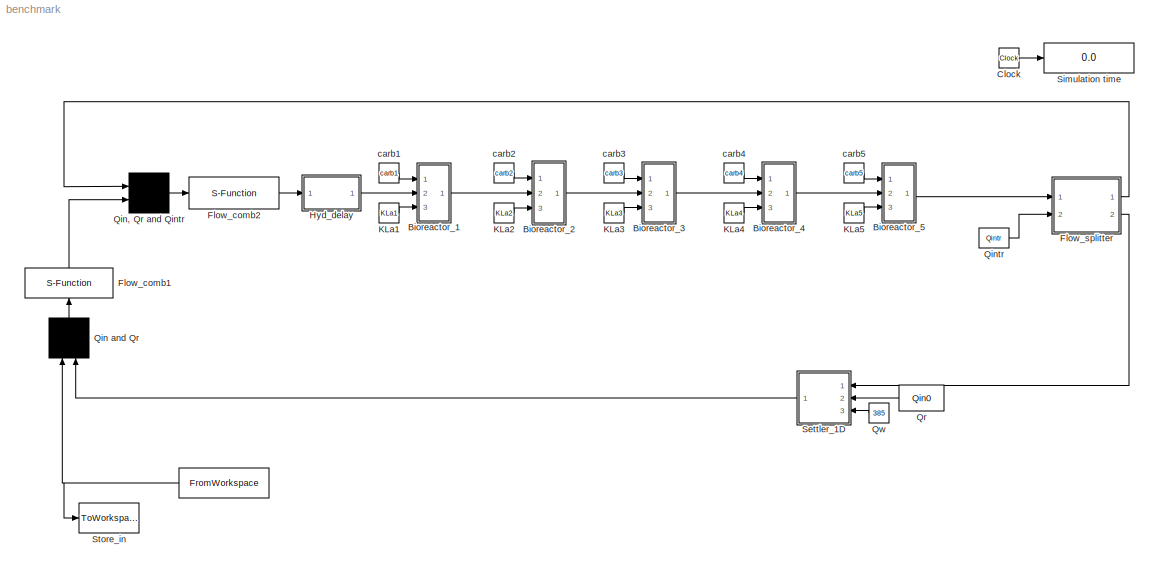
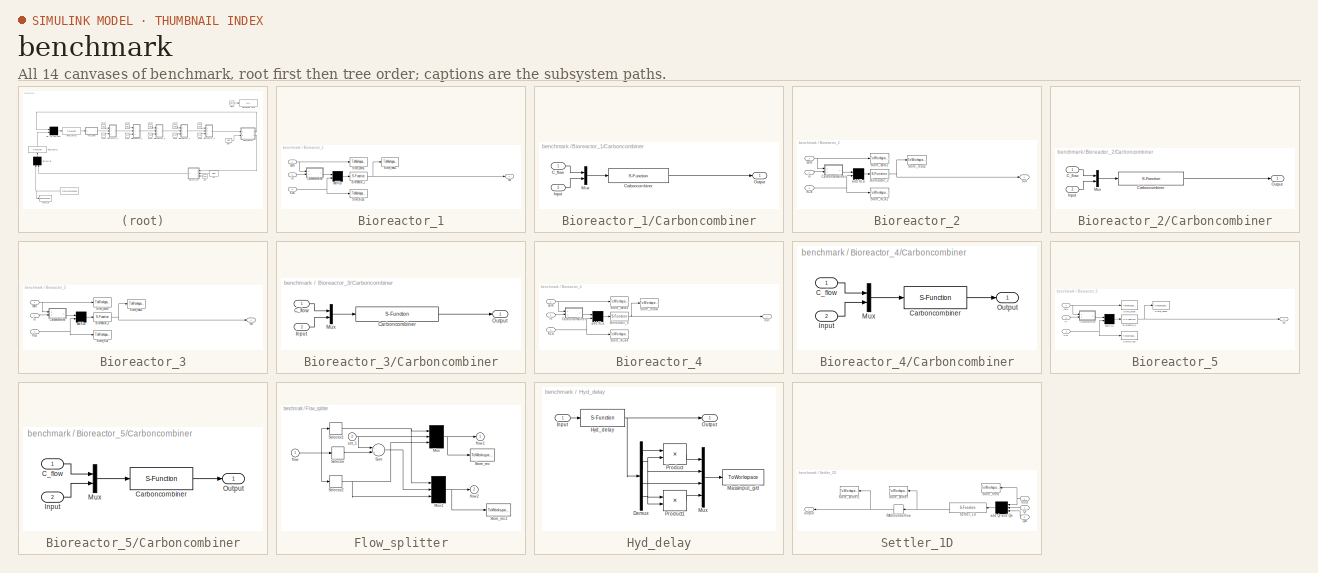
[diagram: thumbnail index - all 14 canvases of the model, root first then tree order]
MODEL benchmark
KIND model
BLOCK [FromWorkspace]  
  OutputAfterFinalValue = Holding final value
  SID = 143
  VariableName = BSM1LT_Influent
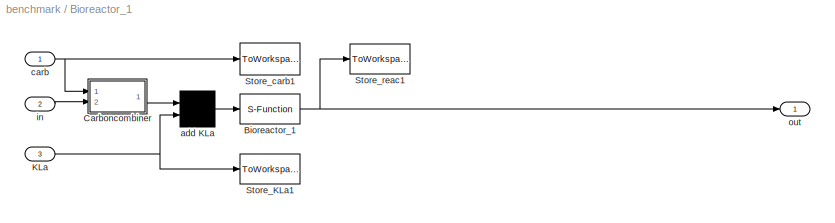
BLOCK [SubSystem] Bioreactor_1
  FunctionWithSeparateData = off
  MaskHideContents = off
  MinAlgLoopOccurrences = off
  Opaque = off
  Ports = [3, 1]
  PropExecContextOutsideSubsystem = off
  RTWSystemCode = Auto
  RequestExecContextInheritance = off
  SID = 3
BLOCK [S-Function] Bioreactor_1/Bioreactor_1
  EnableBusSupport = off
  FunctionName = asm1
  Parameters = XINIT1,PAR1,VOL1,SOSAT1, TEMPMODEL,ACTIVATE, DECAY
  Ports = [1, 1]
  SID = 7
BLOCK [SubSystem] Bioreactor_1/Carboncombiner
  FunctionWithSeparateData = off
  MaskHideContents = off
  MinAlgLoopOccurrences = off
  Opaque = off
  Ports = [2, 1]
  PropExecContextOutsideSubsystem = off
  RTWSystemCode = Auto
  RequestExecContextInheritance = off
  SID = 8
BLOCK [Inport] Bioreactor_1/Carboncombiner/C_flow
  IconDisplay = Port number
  SID = 9
BLOCK [S-Function] Bioreactor_1/Carboncombiner/Carboncombiner
  EnableBusSupport = off
  FunctionName = carboncombiner_asm1
  Parameters = CARBONSOURCECONC
  Ports = [1, 1]
  SID = 11
BLOCK [Inport] Bioreactor_1/Carboncombiner/Input
  IconDisplay = Port number
  Port = 2
  SID = 10
BLOCK [Mux] Bioreactor_1/Carboncombiner/Mux
  DisplayOption = bar
  Inputs = 2
  Ports = [2, 1]
  SID = 12
BLOCK [Outport] Bioreactor_1/Carboncombiner/Output
  IconDisplay = Port number
  SID = 13
BLOCK [Inport] Bioreactor_1/KLa
  IconDisplay = Port number
  Port = 3
  SID = 6
BLOCK [ToWorkspace] Bioreactor_1/Store_KLa1
  MaxDataPoints = inf
  Ports = [1]
  SID = 14
  SampleTime = -1
  VariableName = kla1in
BLOCK [ToWorkspace] Bioreactor_1/Store_carb1
  MaxDataPoints = inf
  Ports = [1]
  SID = 15
  SampleTime = -1
  VariableName = carbon1in
BLOCK [ToWorkspace] Bioreactor_1/Store_reac1
  MaxDataPoints = inf
  Ports = [1]
  SID = 16
  SampleTime = -1
  VariableName = reac1
BLOCK [Mux] Bioreactor_1/add KLa
  Inputs = 2
  Ports = [2, 1]
  SID = 17
BLOCK [Inport] Bioreactor_1/carb
  IconDisplay = Port number
  SID = 4
BLOCK [Inport] Bioreactor_1/in
  IconDisplay = Port number
  Port = 2
  SID = 5
BLOCK [Outport] Bioreactor_1/out
  IconDisplay = Port number
  SID = 18
BLOCK [SubSystem] Bioreactor_2
  FunctionWithSeparateData = off
  MaskHideContents = off
  MinAlgLoopOccurrences = off
  Opaque = off
  Ports = [3, 1]
  PropExecContextOutsideSubsystem = off
  RTWSystemCode = Auto
  RequestExecContextInheritance = off
  SID = 19
BLOCK [S-Function] Bioreactor_2/Bioreactor_2
  EnableBusSupport = off
  FunctionName = asm1
  Parameters = XINIT2,PAR2,VOL2,SOSAT2,TEMPMODEL,ACTIVATE,DECAY
  Ports = [1, 1]
  SID = 23
BLOCK [SubSystem] Bioreactor_2/Carboncombiner
  FunctionWithSeparateData = off
  MaskHideContents = off
  MinAlgLoopOccurrences = off
  Opaque = off
  Ports = [2, 1]
  PropExecContextOutsideSubsystem = off
  RTWSystemCode = Auto
  RequestExecContextInheritance = off
  SID = 24
BLOCK [Inport] Bioreactor_2/Carboncombiner/C_flow
  IconDisplay = Port number
  SID = 25
BLOCK [S-Function] Bioreactor_2/Carboncombiner/Carboncombiner
  EnableBusSupport = off
  FunctionName = carboncombiner_asm1
  Parameters = CARBONSOURCECONC
  Ports = [1, 1]
  SID = 27
BLOCK [Inport] Bioreactor_2/Carboncombiner/Input
  IconDisplay = Port number
  Port = 2
  SID = 26
BLOCK [Mux] Bioreactor_2/Carboncombiner/Mux
  DisplayOption = bar
  Inputs = 2
  Ports = [2, 1]
  SID = 28
BLOCK [Outport] Bioreactor_2/Carboncombiner/Output
  IconDisplay = Port number
  SID = 29
BLOCK [Inport] Bioreactor_2/KLa
  IconDisplay = Port number
  Port = 3
  SID = 22
BLOCK [ToWorkspace] Bioreactor_2/Store_KLa2
  MaxDataPoints = inf
  Ports = [1]
  SID = 30
  SampleTime = -1
  VariableName = kla2in
BLOCK [ToWorkspace] Bioreactor_2/Store_carb2
  MaxDataPoints = inf
  Ports = [1]
  SID = 31
  SampleTime = -1
  VariableName = carbon2in
BLOCK [ToWorkspace] Bioreactor_2/Store_reac2
  MaxDataPoints = inf
  Ports = [1]
  SID = 32
  SampleTime = -1
  VariableName = reac2
BLOCK [Mux] Bioreactor_2/add KLa
  Inputs = 2
  Ports = [2, 1]
  SID = 33
BLOCK [Inport] Bioreactor_2/carb
  IconDisplay = Port number
  SID = 20
BLOCK [Inport] Bioreactor_2/in
  IconDisplay = Port number
  Port = 2
  SID = 21
BLOCK [Outport] Bioreactor_2/out
  IconDisplay = Port number
  SID = 34
BLOCK [SubSystem] Bioreactor_3
  FunctionWithSeparateData = off
  MaskHideContents = off
  MinAlgLoopOccurrences = off
  Opaque = off
  Ports = [3, 1]
  PropExecContextOutsideSubsystem = off
  RTWSystemCode = Auto
  RequestExecContextInheritance = off
  SID = 35
BLOCK [S-Function] Bioreactor_3/Bioreactor_3
  EnableBusSupport = off
  FunctionName = asm1
  Parameters = XINIT3,PAR3,VOL3,SOSAT3,TEMPMODEL,ACTIVATE,DECAY
  Ports = [1, 1]
  SID = 39
BLOCK [SubSystem] Bioreactor_3/Carboncombiner
  FunctionWithSeparateData = off
  MaskHideContents = off
  MinAlgLoopOccurrences = off
  Opaque = off
  Ports = [2, 1]
  PropExecContextOutsideSubsystem = off
  RTWSystemCode = Auto
  RequestExecContextInheritance = off
  SID = 40
BLOCK [Inport] Bioreactor_3/Carboncombiner/C_flow
  IconDisplay = Port number
  SID = 41
BLOCK [S-Function] Bioreactor_3/Carboncombiner/Carboncombiner
  EnableBusSupport = off
  FunctionName = carboncombiner_asm1
  Parameters = CARBONSOURCECONC
  Ports = [1, 1]
  SID = 43
BLOCK [Inport] Bioreactor_3/Carboncombiner/Input
  IconDisplay = Port number
  Port = 2
  SID = 42
BLOCK [Mux] Bioreactor_3/Carboncombiner/Mux
  DisplayOption = bar
  Inputs = 2
  Ports = [2, 1]
  SID = 44
BLOCK [Outport] Bioreactor_3/Carboncombiner/Output
  IconDisplay = Port number
  SID = 45
BLOCK [Inport] Bioreactor_3/KLa
  IconDisplay = Port number
  Port = 3
  SID = 38
BLOCK [ToWorkspace] Bioreactor_3/Store_KLa
  MaxDataPoints = inf
  Ports = [1]
  SID = 46
  SampleTime = -1
  VariableName = kla3in
BLOCK [ToWorkspace] Bioreactor_3/Store_carb3
  MaxDataPoints = inf
  Ports = [1]
  SID = 47
  SampleTime = -1
  VariableName = carbon3in
BLOCK [ToWorkspace] Bioreactor_3/Store_reac1
  MaxDataPoints = inf
  Ports = [1]
  SID = 48
  SampleTime = -1
  VariableName = reac3
BLOCK [Mux] Bioreactor_3/add KLa
  Inputs = 2
  Ports = [2, 1]
  SID = 49
BLOCK [Inport] Bioreactor_3/carb
  IconDisplay = Port number
  SID = 36
BLOCK [Inport] Bioreactor_3/in
  IconDisplay = Port number
  Port = 2
  SID = 37
BLOCK [Outport] Bioreactor_3/out
  IconDisplay = Port number
  SID = 50
BLOCK [SubSystem] Bioreactor_4
  FunctionWithSeparateData = off
  MaskHideContents = off
  MinAlgLoopOccurrences = off
  Opaque = off
  Ports = [3, 1]
  PropExecContextOutsideSubsystem = off
  RTWSystemCode = Auto
  RequestExecContextInheritance = off
  SID = 51
BLOCK [S-Function] Bioreactor_4/Bioreactor_4
  EnableBusSupport = off
  FunctionName = asm1
  Parameters = XINIT4,PAR4,VOL4,SOSAT4,TEMPMODEL,ACTIVATE,DECAY
  Ports = [1, 1]
  SID = 55
BLOCK [SubSystem] Bioreactor_4/Carboncombiner
  FunctionWithSeparateData = off
  MaskHideContents = off
  MinAlgLoopOccurrences = off
  Opaque = off
  Ports = [2, 1]
  PropExecContextOutsideSubsystem = off
  RTWSystemCode = Auto
  RequestExecContextInheritance = off
  SID = 56
BLOCK [Inport] Bioreactor_4/Carboncombiner/C_flow
  IconDisplay = Port number
  SID = 57
BLOCK [S-Function] Bioreactor_4/Carboncombiner/Carboncombiner
  EnableBusSupport = off
  FunctionName = carboncombiner_asm1
  Parameters = CARBONSOURCECONC
  Ports = [1, 1]
  SID = 59
BLOCK [Inport] Bioreactor_4/Carboncombiner/Input
  IconDisplay = Port number
  Port = 2
  SID = 58
BLOCK [Mux] Bioreactor_4/Carboncombiner/Mux
  DisplayOption = bar
  Inputs = 2
  Ports = [2, 1]
  SID = 60
BLOCK [Outport] Bioreactor_4/Carboncombiner/Output
  IconDisplay = Port number
  SID = 61
BLOCK [Inport] Bioreactor_4/KLa
  IconDisplay = Port number
  Port = 3
  SID = 54
BLOCK [ToWorkspace] Bioreactor_4/Store_KLa4
  MaxDataPoints = inf
  Ports = [1]
  SID = 62
  SampleTime = -1
  VariableName = kla4in
BLOCK [ToWorkspace] Bioreactor_4/Store_carb4
  MaxDataPoints = inf
  Ports = [1]
  SID = 63
  SampleTime = -1
  VariableName = carbon4in
BLOCK [ToWorkspace] Bioreactor_4/Store_reac4
  MaxDataPoints = inf
  Ports = [1]
  SID = 64
  SampleTime = -1
  VariableName = reac4
BLOCK [Mux] Bioreactor_4/add KLa
  Inputs = 2
  Ports = [2, 1]
  SID = 65
BLOCK [Inport] Bioreactor_4/carb
  IconDisplay = Port number
  SID = 52
BLOCK [Inport] Bioreactor_4/in
  IconDisplay = Port number
  Port = 2
  SID = 53
BLOCK [Outport] Bioreactor_4/out
  IconDisplay = Port number
  SID = 66
BLOCK [SubSystem] Bioreactor_5
  FunctionWithSeparateData = off
  MaskHideContents = off
  MinAlgLoopOccurrences = off
  Opaque = off
  Ports = [3, 1]
  PropExecContextOutsideSubsystem = off
  RTWSystemCode = Auto
  RequestExecContextInheritance = off
  SID = 67
BLOCK [S-Function] Bioreactor_5/Bioreactor_5
  EnableBusSupport = off
  FunctionName = asm1
  Parameters = XINIT5,PAR5,VOL5,SOSAT5,TEMPMODEL,ACTIVATE,DECAY
  Ports = [1, 1]
  SID = 71
BLOCK [SubSystem] Bioreactor_5/Carboncombiner
  FunctionWithSeparateData = off
  MaskHideContents = off
  MinAlgLoopOccurrences = off
  Opaque = off
  Ports = [2, 1]
  PropExecContextOutsideSubsystem = off
  RTWSystemCode = Auto
  RequestExecContextInheritance = off
  SID = 72
BLOCK [Inport] Bioreactor_5/Carboncombiner/C_flow
  IconDisplay = Port number
  SID = 73
BLOCK [S-Function] Bioreactor_5/Carboncombiner/Carboncombiner
  EnableBusSupport = off
  FunctionName = carboncombiner_asm1
  Parameters = CARBONSOURCECONC
  Ports = [1, 1]
  SID = 75
BLOCK [Inport] Bioreactor_5/Carboncombiner/Input
  IconDisplay = Port number
  Port = 2
  SID = 74
BLOCK [Mux] Bioreactor_5/Carboncombiner/Mux
  DisplayOption = bar
  Inputs = 2
  Ports = [2, 1]
  SID = 76
BLOCK [Outport] Bioreactor_5/Carboncombiner/Output
  IconDisplay = Port number
  SID = 77
BLOCK [Inport] Bioreactor_5/KLa
  IconDisplay = Port number
  Port = 3
  SID = 70
BLOCK [ToWorkspace] Bioreactor_5/Store_KLa5
  MaxDataPoints = inf
  Ports = [1]
  SID = 78
  SampleTime = -1
  VariableName = kla5in
BLOCK [ToWorkspace] Bioreactor_5/Store_carb5
  MaxDataPoints = inf
  Ports = [1]
  SID = 79
  SampleTime = -1
  VariableName = carbon5in
BLOCK [ToWorkspace] Bioreactor_5/Store_reac5
  MaxDataPoints = inf
  Ports = [1]
  SID = 80
  SampleTime = -1
  VariableName = reac5
BLOCK [Mux] Bioreactor_5/add KLa
  Inputs = 2
  Ports = [2, 1]
  SID = 81
BLOCK [Inport] Bioreactor_5/carb
  IconDisplay = Port number
  SID = 68
BLOCK [Inport] Bioreactor_5/in
  IconDisplay = Port number
  Port = 2
  SID = 69
BLOCK [Outport] Bioreactor_5/out
  IconDisplay = Port number
  SID = 82
BLOCK [Clock] Clock
  SID = 83
BLOCK [S-Function] Flow_comb1
  EnableBusSupport = off
  FunctionName = combiner_asm1
  Ports = [1, 1]
  SID = 84
BLOCK [S-Function] Flow_comb2
  EnableBusSupport = off
  FunctionName = combiner_asm1
  Ports = [1, 1]
  SID = 85
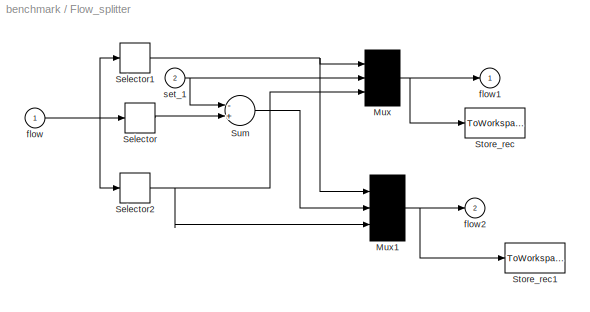
BLOCK [SubSystem] Flow_splitter
  FunctionWithSeparateData = off
  MaskHideContents = off
  MinAlgLoopOccurrences = off
  Opaque = off
  Ports = [2, 2]
  PropExecContextOutsideSubsystem = off
  RTWSystemCode = Auto
  RequestExecContextInheritance = off
  SID = 86
BLOCK [Mux] Flow_splitter/Mux
  Inputs = 3
  Ports = [3, 1]
  SID = 89
BLOCK [Mux] Flow_splitter/Mux1
  Inputs = 3
  Ports = [3, 1]
  SID = 90
BLOCK [Selector] Flow_splitter/Selector
  IndexOptions = Index vector (dialog)
  Indices = [15]
  InputPortWidth = 21
  OutputSizes = 1
  Ports = [1, 1]
  SID = 91
BLOCK [Selector] Flow_splitter/Selector1
  IndexOptions = Index vector (dialog)
  Indices = [1 2 3 4 5 6 7 8 9 10 11 12 13 14]
  InputPortWidth = 21
  OutputSizes = 1
  Ports = [1, 1]
  SID = 92
BLOCK [Selector] Flow_splitter/Selector2
  IndexOptions = Index vector (dialog)
  Indices = [16 17 18 19 20 21]
  InputPortWidth = 21
  OutputSizes = 1
  Ports = [1, 1]
  SID = 93
BLOCK [ToWorkspace] Flow_splitter/Store_rec
  MaxDataPoints = inf
  Ports = [1]
  SID = 94
  SampleTime = -1
  VariableName = rec
BLOCK [ToWorkspace] Flow_splitter/Store_rec1
  MaxDataPoints = inf
  Ports = [1]
  SID = 95
  SampleTime = -1
  VariableName = rec1
BLOCK [Sum] Flow_splitter/Sum
  Inputs = -+
  Ports = [2, 1]
  SID = 96
BLOCK [Inport] Flow_splitter/flow
  IconDisplay = Port number
  SID = 87
BLOCK [Outport] Flow_splitter/flow1
  IconDisplay = Port number
  SID = 97
BLOCK [Outport] Flow_splitter/flow2
  IconDisplay = Port number
  Port = 2
  SID = 98
BLOCK [Inport] Flow_splitter/set_1
  IconDisplay = Port number
  Port = 2
  SID = 88
BLOCK [SubSystem] Hyd_delay
  FunctionWithSeparateData = off
  MaskHideContents = off
  MinAlgLoopOccurrences = off
  Opaque = off
  Ports = [1, 1]
  PropExecContextOutsideSubsystem = off
  RTWSystemCode = Auto
  RequestExecContextInheritance = off
  SID = 99
BLOCK [Demux] Hyd_delay/Demux
  Outputs = [14,1,1,5]
  Ports = [1, 4]
  SID = 101
BLOCK [S-Function] Hyd_delay/Hyd_delay
  EnableBusSupport = off
  FunctionName = hyddelay_asm1
  Parameters = XINIT,PAR1,T
  Ports = [1, 1]
  SID = 102
BLOCK [Inport] Hyd_delay/Input
  IconDisplay = Port number
  SID = 100
BLOCK [ToWorkspace] Hyd_delay/Massinput_g//d
  MaxDataPoints = inf
  Ports = [1]
  SID = 103
  SampleTime = -1
  VariableName = ASinput
BLOCK [Mux] Hyd_delay/Mux
  DisplayOption = bar
  Ports = [4, 1]
  SID = 104
BLOCK [Outport] Hyd_delay/Output
  IconDisplay = Port number
  SID = 107
BLOCK [Product] Hyd_delay/Product
  InputSameDT = off
  Ports = [2, 1]
  RndMeth = Floor
  SID = 105
BLOCK [Product] Hyd_delay/Product1
  InputSameDT = off
  Ports = [2, 1]
  RndMeth = Floor
  SID = 106
BLOCK [Constant] KLa1
  SID = 108
  Value = KLa1
BLOCK [Constant] KLa2
  SID = 109
  Value = KLa2
BLOCK [Constant] KLa3
  SID = 110
  Value = KLa3
BLOCK [Constant] KLa4
  SID = 111
  Value = KLa4
BLOCK [Constant] KLa5
  SID = 112
  Value = KLa5
BLOCK [Mux] Qin and Qr
  Inputs = 2
  Ports = [2, 1]
  SID = 116
BLOCK [Mux] Qin, Qr and Qintr
  Inputs = 2
  Ports = [2, 1]
  SID = 117
BLOCK [Constant] Qintr
  SID = 118
  Value = Qintr
BLOCK [Constant] Qr
  SID = 119
  Value = Qin0
BLOCK [Constant] Qw
  SID = 120
  Value = 385
BLOCK [SubSystem] Settler_1D
  FunctionWithSeparateData = off
  MaskHideContents = off
  MinAlgLoopOccurrences = off
  Opaque = off
  Ports = [3, 1]
  PropExecContextOutsideSubsystem = off
  RTWSystemCode = Auto
  RequestExecContextInheritance = off
  SID = 123
BLOCK [Inport] Settler_1D/Qr
  IconDisplay = Port number
  Port = 2
  SID = 125
BLOCK [Inport] Settler_1D/Qw
  IconDisplay = Port number
  Port = 3
  SID = 126
BLOCK [Selector] Settler_1D/RAS\nunderflow
  IndexOptions = Index vector (dialog)
  Indices = [181 182 183 184 185 186 187 188 189 190 191 192 193 194 202 195 196 197 198 199 200]
  InputPortWidth = 203
  OutputSizes = 1
  Ports = [1, 1]
  SID = 127
BLOCK [S-Function] Settler_1D/Settler_1D
  EnableBusSupport = off
  FunctionName = settler1d_asm1
  Parameters = SETTLERINIT,SETTLERPAR,DIM,LAYER,PAR1,TEMPMODEL, DECAY, SETTLER
  Ports = [1, 1]
  SID = 128
BLOCK [ToWorkspace] Settler_1D/Store_feed
  MaxDataPoints = inf
  Ports = [1]
  SID = 129
  SampleTime = -1
  VariableName = feed
BLOCK [ToWorkspace] Settler_1D/Store_settler
  MaxDataPoints = inf
  Ports = [1]
  SID = 130
  SampleTime = -1
  VariableName = settler
BLOCK [ToWorkspace] Settler_1D/Store_settler1
  MaxDataPoints = inf
  Ports = [1]
  SID = 131
  SampleTime = -1
  VariableName = settler1
BLOCK [Mux] Settler_1D/add Qr and Qw
  Inputs = 3
  Ports = [3, 1]
  SID = 132
BLOCK [Inport] Settler_1D/feed
  IconDisplay = Port number
  SID = 124
BLOCK [Outport] Settler_1D/output
  IconDisplay = Port number
  SID = 133
BLOCK [Display] Simulation time
  Decimation = 1
  Lockdown = off
  Ports = [1]
  SID = 134
BLOCK [ToWorkspace] Store_in
  MaxDataPoints = inf
  Ports = [1]
  SID = 135
  SampleTime = -1
  VariableName = in
BLOCK [Constant] carb1
  SID = 136
  Value = carb1
BLOCK [Constant] carb2
  SID = 137
  Value = carb2
BLOCK [Constant] carb3
  SID = 138
  Value = carb3
BLOCK [Constant] carb4
  SID = 139
  Value = carb4
BLOCK [Constant] carb5
  SID = 140
  Value = carb5
NET  :1 -> Qin and Qr:1, Store_in:1
NET Bioreactor_1/Bioreactor_1:1 -> Bioreactor_1/Store_reac1:1, Bioreactor_1/out:1
LINE Bioreactor_1/Carboncombiner/C_flow:1 -> Bioreactor_1/Carboncombiner/Mux:1
LINE Bioreactor_1/Carboncombiner/Carboncombiner:1 -> Bioreactor_1/Carboncombiner/Output:1
LINE Bioreactor_1/Carboncombiner/Input:1 -> Bioreactor_1/Carboncombiner/Mux:2
LINE Bioreactor_1/Carboncombiner/Mux:1 -> Bioreactor_1/Carboncombiner/Carboncombiner:1
LINE Bioreactor_1/Carboncombiner:1 -> Bioreactor_1/add KLa:1
NET Bioreactor_1/KLa:1 -> Bioreactor_1/Store_KLa1:1, Bioreactor_1/add KLa:2
LINE Bioreactor_1/add KLa:1 -> Bioreactor_1/Bioreactor_1:1
NET Bioreactor_1/carb:1 -> Bioreactor_1/Carboncombiner:1, Bioreactor_1/Store_carb1:1
LINE Bioreactor_1/in:1 -> Bioreactor_1/Carboncombiner:2
LINE Bioreactor_1:1 -> Bioreactor_2:2
NET Bioreactor_2/Bioreactor_2:1 -> Bioreactor_2/Store_reac2:1, Bioreactor_2/out:1
LINE Bioreactor_2/Carboncombiner/C_flow:1 -> Bioreactor_2/Carboncombiner/Mux:1
LINE Bioreactor_2/Carboncombiner/Carboncombiner:1 -> Bioreactor_2/Carboncombiner/Output:1
LINE Bioreactor_2/Carboncombiner/Input:1 -> Bioreactor_2/Carboncombiner/Mux:2
LINE Bioreactor_2/Carboncombiner/Mux:1 -> Bioreactor_2/Carboncombiner/Carboncombiner:1
LINE Bioreactor_2/Carboncombiner:1 -> Bioreactor_2/add KLa:1
NET Bioreactor_2/KLa:1 -> Bioreactor_2/Store_KLa2:1, Bioreactor_2/add KLa:2
LINE Bioreactor_2/add KLa:1 -> Bioreactor_2/Bioreactor_2:1
NET Bioreactor_2/carb:1 -> Bioreactor_2/Carboncombiner:1, Bioreactor_2/Store_carb2:1
LINE Bioreactor_2/in:1 -> Bioreactor_2/Carboncombiner:2
LINE Bioreactor_2:1 -> Bioreactor_3:2
NET Bioreactor_3/Bioreactor_3:1 -> Bioreactor_3/Store_reac1:1, Bioreactor_3/out:1
LINE Bioreactor_3/Carboncombiner/C_flow:1 -> Bioreactor_3/Carboncombiner/Mux:1
LINE Bioreactor_3/Carboncombiner/Carboncombiner:1 -> Bioreactor_3/Carboncombiner/Output:1
LINE Bioreactor_3/Carboncombiner/Input:1 -> Bioreactor_3/Carboncombiner/Mux:2
LINE Bioreactor_3/Carboncombiner/Mux:1 -> Bioreactor_3/Carboncombiner/Carboncombiner:1
LINE Bioreactor_3/Carboncombiner:1 -> Bioreactor_3/add KLa:1
NET Bioreactor_3/KLa:1 -> Bioreactor_3/Store_KLa:1, Bioreactor_3/add KLa:2
LINE Bioreactor_3/add KLa:1 -> Bioreactor_3/Bioreactor_3:1
NET Bioreactor_3/carb:1 -> Bioreactor_3/Carboncombiner:1, Bioreactor_3/Store_carb3:1
LINE Bioreactor_3/in:1 -> Bioreactor_3/Carboncombiner:2
LINE Bioreactor_3:1 -> Bioreactor_4:2
NET Bioreactor_4/Bioreactor_4:1 -> Bioreactor_4/Store_reac4:1, Bioreactor_4/out:1
LINE Bioreactor_4/Carboncombiner/C_flow:1 -> Bioreactor_4/Carboncombiner/Mux:1
LINE Bioreactor_4/Carboncombiner/Carboncombiner:1 -> Bioreactor_4/Carboncombiner/Output:1
LINE Bioreactor_4/Carboncombiner/Input:1 -> Bioreactor_4/Carboncombiner/Mux:2
LINE Bioreactor_4/Carboncombiner/Mux:1 -> Bioreactor_4/Carboncombiner/Carboncombiner:1
LINE Bioreactor_4/Carboncombiner:1 -> Bioreactor_4/add KLa:1
NET Bioreactor_4/KLa:1 -> Bioreactor_4/Store_KLa4:1, Bioreactor_4/add KLa:2
LINE Bioreactor_4/add KLa:1 -> Bioreactor_4/Bioreactor_4:1
NET Bioreactor_4/carb:1 -> Bioreactor_4/Carboncombiner:1, Bioreactor_4/Store_carb4:1
LINE Bioreactor_4/in:1 -> Bioreactor_4/Carboncombiner:2
LINE Bioreactor_4:1 -> Bioreactor_5:2
NET Bioreactor_5/Bioreactor_5:1 -> Bioreactor_5/Store_reac5:1, Bioreactor_5/out:1
LINE Bioreactor_5/Carboncombiner/C_flow:1 -> Bioreactor_5/Carboncombiner/Mux:1
LINE Bioreactor_5/Carboncombiner/Carboncombiner:1 -> Bioreactor_5/Carboncombiner/Output:1
LINE Bioreactor_5/Carboncombiner/Input:1 -> Bioreactor_5/Carboncombiner/Mux:2
LINE Bioreactor_5/Carboncombiner/Mux:1 -> Bioreactor_5/Carboncombiner/Carboncombiner:1
LINE Bioreactor_5/Carboncombiner:1 -> Bioreactor_5/add KLa:1
NET Bioreactor_5/KLa:1 -> Bioreactor_5/Store_KLa5:1, Bioreactor_5/add KLa:2
LINE Bioreactor_5/add KLa:1 -> Bioreactor_5/Bioreactor_5:1
NET Bioreactor_5/carb:1 -> Bioreactor_5/Carboncombiner:1, Bioreactor_5/Store_carb5:1
LINE Bioreactor_5/in:1 -> Bioreactor_5/Carboncombiner:2
LINE Bioreactor_5:1 -> Flow_splitter:1
LINE Clock:1 -> Simulation time:1
LINE Flow_comb1:1 -> Qin, Qr and Qintr:2
LINE Flow_comb2:1 -> Hyd_delay:1
NET Flow_splitter/Mux1:1 -> Flow_splitter/Store_rec1:1, Flow_splitter/flow2:1
NET Flow_splitter/Mux:1 -> Flow_splitter/Store_rec:1, Flow_splitter/flow1:1
NET Flow_splitter/Selector1:1 -> Flow_splitter/Mux1:1, Flow_splitter/Mux:1
NET Flow_splitter/Selector2:1 -> Flow_splitter/Mux1:3, Flow_splitter/Mux:3
LINE Flow_splitter/Selector:1 -> Flow_splitter/Sum:2
LINE Flow_splitter/Sum:1 -> Flow_splitter/Mux1:2
NET Flow_splitter/flow:1 -> Flow_splitter/Selector1:1, Flow_splitter/Selector2:1, Flow_splitter/Selector:1
NET Flow_splitter/set_1:1 -> Flow_splitter/Mux:2, Flow_splitter/Sum:1
LINE Flow_splitter:1 -> Qin, Qr and Qintr:1
LINE Flow_splitter:2 -> Settler_1D:1
LINE Hyd_delay/Demux:1 -> Hyd_delay/Product:1
NET Hyd_delay/Demux:2 -> Hyd_delay/Mux:2, Hyd_delay/Product1:1, Hyd_delay/Product:2
LINE Hyd_delay/Demux:3 -> Hyd_delay/Mux:3
LINE Hyd_delay/Demux:4 -> Hyd_delay/Product1:2
NET Hyd_delay/Hyd_delay:1 -> Hyd_delay/Demux:1, Hyd_delay/Output:1
LINE Hyd_delay/Input:1 -> Hyd_delay/Hyd_delay:1
LINE Hyd_delay/Mux:1 -> Hyd_delay/Massinput_g//d:1
LINE Hyd_delay/Product1:1 -> Hyd_delay/Mux:4
LINE Hyd_delay/Product:1 -> Hyd_delay/Mux:1
LINE Hyd_delay:1 -> Bioreactor_1:2
LINE KLa1:1 -> Bioreactor_1:3
LINE KLa2:1 -> Bioreactor_2:3
LINE KLa3:1 -> Bioreactor_3:3
LINE KLa4:1 -> Bioreactor_4:3
LINE KLa5:1 -> Bioreactor_5:3
LINE Qin and Qr:1 -> Flow_comb1:1
LINE Qin, Qr and Qintr:1 -> Flow_comb2:1
LINE Qintr:1 -> Flow_splitter:2
LINE Qr:1 -> Settler_1D:2
LINE Qw:1 -> Settler_1D:3
LINE Settler_1D/Qr:1 -> Settler_1D/add Qr and Qw:2
LINE Settler_1D/Qw:1 -> Settler_1D/add Qr and Qw:3
NET Settler_1D/RAS\nunderflow:1 -> Settler_1D/Store_settler1:1, Settler_1D/output:1
NET Settler_1D/Settler_1D:1 -> Settler_1D/RAS\nunderflow:1, Settler_1D/Store_settler:1
LINE Settler_1D/add Qr and Qw:1 -> Settler_1D/Settler_1D:1
NET Settler_1D/feed:1 -> Settler_1D/Store_feed:1, Settler_1D/add Qr and Qw:1
LINE Settler_1D:1 -> Qin and Qr:2
LINE carb1:1 -> Bioreactor_1:1
LINE carb2:1 -> Bioreactor_2:1
LINE carb3:1 -> Bioreactor_3:1
LINE carb4:1 -> Bioreactor_4:1
LINE carb5:1 -> Bioreactor_5:1
note: NET lines group one-source signal fan-out (src -> all destinations, sorted); 1:1 wires keep LINE
